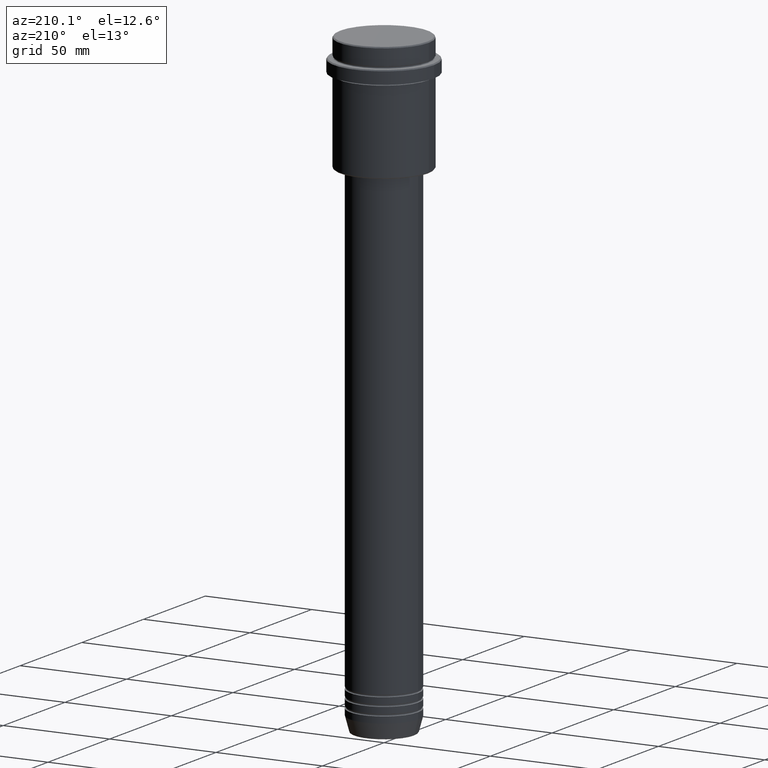
[diagram: clean part render]
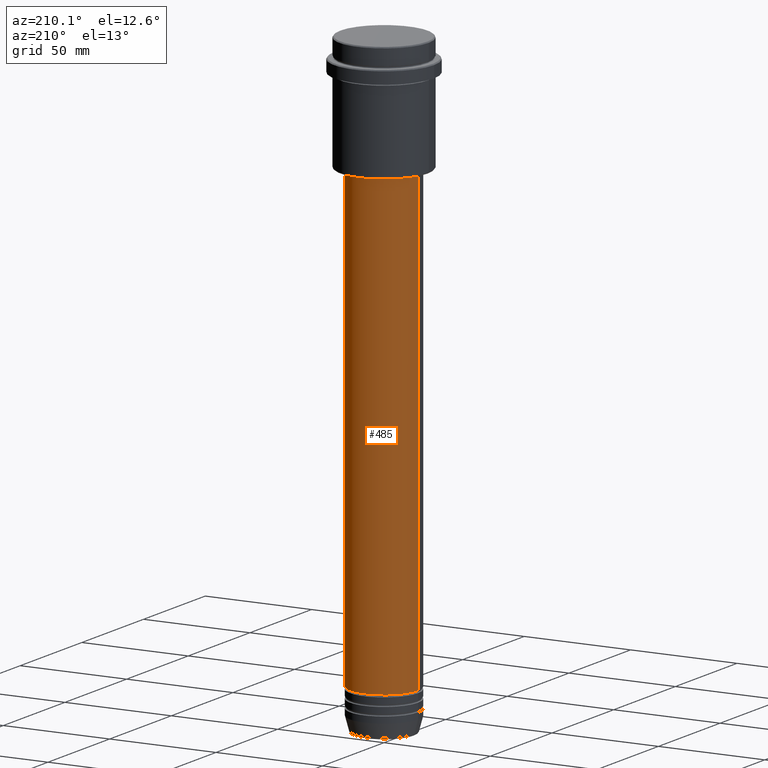
[diagram: same view with one face highlighted and labeled with its STEP entity id]
A machine part, auxiliary view. The second image highlights one B-rep face of the part: STEP entity #485.
In plain terms, the highlighted cylindrical surface (partial cylindrical patch) has radius 16 mm, axis along (-0, -0, 1).
Its self-contained STEP definition (entity closure, byte-faithful):
#51 = AXIS2_PLACEMENT_3D ( 'NONE', #768, #354, #434 ) ;
#63 = VERTEX_POINT ( 'NONE', #174 ) ;
#143 = VECTOR ( 'NONE', #1251, 1000.000000000000000 ) ;
#174 = CARTESIAN_POINT ( 'NONE',  ( -16.00000000000000355, 1.959434878635765526E-15, -55.99999999999991473 ) ) ;
#196 = CARTESIAN_POINT ( 'NONE',  ( 0.000000000000000000, 0.000000000000000000, 0.000000000000000000 ) ) ;
#289 = CYLINDRICAL_SURFACE ( 'NONE', #1022, 16.00000000000000000 ) ;
#311 = DIRECTION ( 'NONE',  ( -0.000000000000000000, -0.000000000000000000, 1.000000000000000000 ) ) ;
#350 = AXIS2_PLACEMENT_3D ( 'NONE', #1304, #1065, #651 ) ;
#354 = DIRECTION ( 'NONE',  ( -0.000000000000000000, -0.000000000000000000, 1.000000000000000000 ) ) ;
#380 = VERTEX_POINT ( 'NONE', #587 ) ;
#434 = DIRECTION ( 'NONE',  ( 1.000000000000000000, 0.000000000000000000, 0.000000000000000000 ) ) ;
#469 = ORIENTED_EDGE ( 'NONE', *, *, #946, .F. ) ;
#485 = ADVANCED_FACE ( 'NONE', ( #502 ), #289, .T. ) ;
#502 = FACE_OUTER_BOUND ( 'NONE', #931, .T. ) ;
#587 = CARTESIAN_POINT ( 'NONE',  ( -16.00000000000000000, 1.959434878635765131E-15, -270.9999999999998295 ) ) ;
#625 = LINE ( 'NONE', #950, #989 ) ;
#651 = DIRECTION ( 'NONE',  ( 1.000000000000000000, 0.000000000000000000, 0.000000000000000000 ) ) ;
#715 = DIRECTION ( 'NONE',  ( -0.000000000000000000, -0.000000000000000000, 1.000000000000000000 ) ) ;
#735 = VERTEX_POINT ( 'NONE', #1323 ) ;
#750 = CIRCLE ( 'NONE', #350, 16.00000000000000355 ) ;
#768 = CARTESIAN_POINT ( 'NONE',  ( 0.000000000000000000, 0.000000000000000000, -270.9999999999998295 ) ) ;
#787 = ORIENTED_EDGE ( 'NONE', *, *, #1247, .T. ) ;
#907 = ORIENTED_EDGE ( 'NONE', *, *, #1286, .F. ) ;
#931 = EDGE_LOOP ( 'NONE', ( #1111, #787, #469, #907 ) ) ;
#942 = DIRECTION ( 'NONE',  ( 1.000000000000000000, 0.000000000000000000, 0.000000000000000000 ) ) ;
#946 = EDGE_CURVE ( 'NONE', #1197, #63, #750, .T. ) ;
#950 = CARTESIAN_POINT ( 'NONE',  ( -16.00000000000000000, 1.959434878635765131E-15, 0.000000000000000000 ) ) ;
#969 = CIRCLE ( 'NONE', #51, 16.00000000000000000 ) ;
#989 = VECTOR ( 'NONE', #311, 1000.000000000000000 ) ;
#1022 = AXIS2_PLACEMENT_3D ( 'NONE', #196, #715, #942 ) ;
#1065 = DIRECTION ( 'NONE',  ( -0.000000000000000000, -0.000000000000000000, 1.000000000000000000 ) ) ;
#1111 = ORIENTED_EDGE ( 'NONE', *, *, #1340, .T. ) ;
#1120 = CARTESIAN_POINT ( 'NONE',  ( 16.00000000000000355, 0.000000000000000000, -55.99999999999991473 ) ) ;
#1160 = CARTESIAN_POINT ( 'NONE',  ( 16.00000000000000000, 0.000000000000000000, 0.000000000000000000 ) ) ;
#1197 = VERTEX_POINT ( 'NONE', #1120 ) ;
#1247 = EDGE_CURVE ( 'NONE', #380, #63, #625, .T. ) ;
#1251 = DIRECTION ( 'NONE',  ( -0.000000000000000000, -0.000000000000000000, 1.000000000000000000 ) ) ;
#1263 = LINE ( 'NONE', #1160, #143 ) ;
#1286 = EDGE_CURVE ( 'NONE', #735, #1197, #1263, .T. ) ;
#1304 = CARTESIAN_POINT ( 'NONE',  ( 0.000000000000000000, 0.000000000000000000, -55.99999999999991473 ) ) ;
#1323 = CARTESIAN_POINT ( 'NONE',  ( 16.00000000000000000, 0.000000000000000000, -270.9999999999998295 ) ) ;
#1340 = EDGE_CURVE ( 'NONE', #735, #380, #969, .T. ) ;